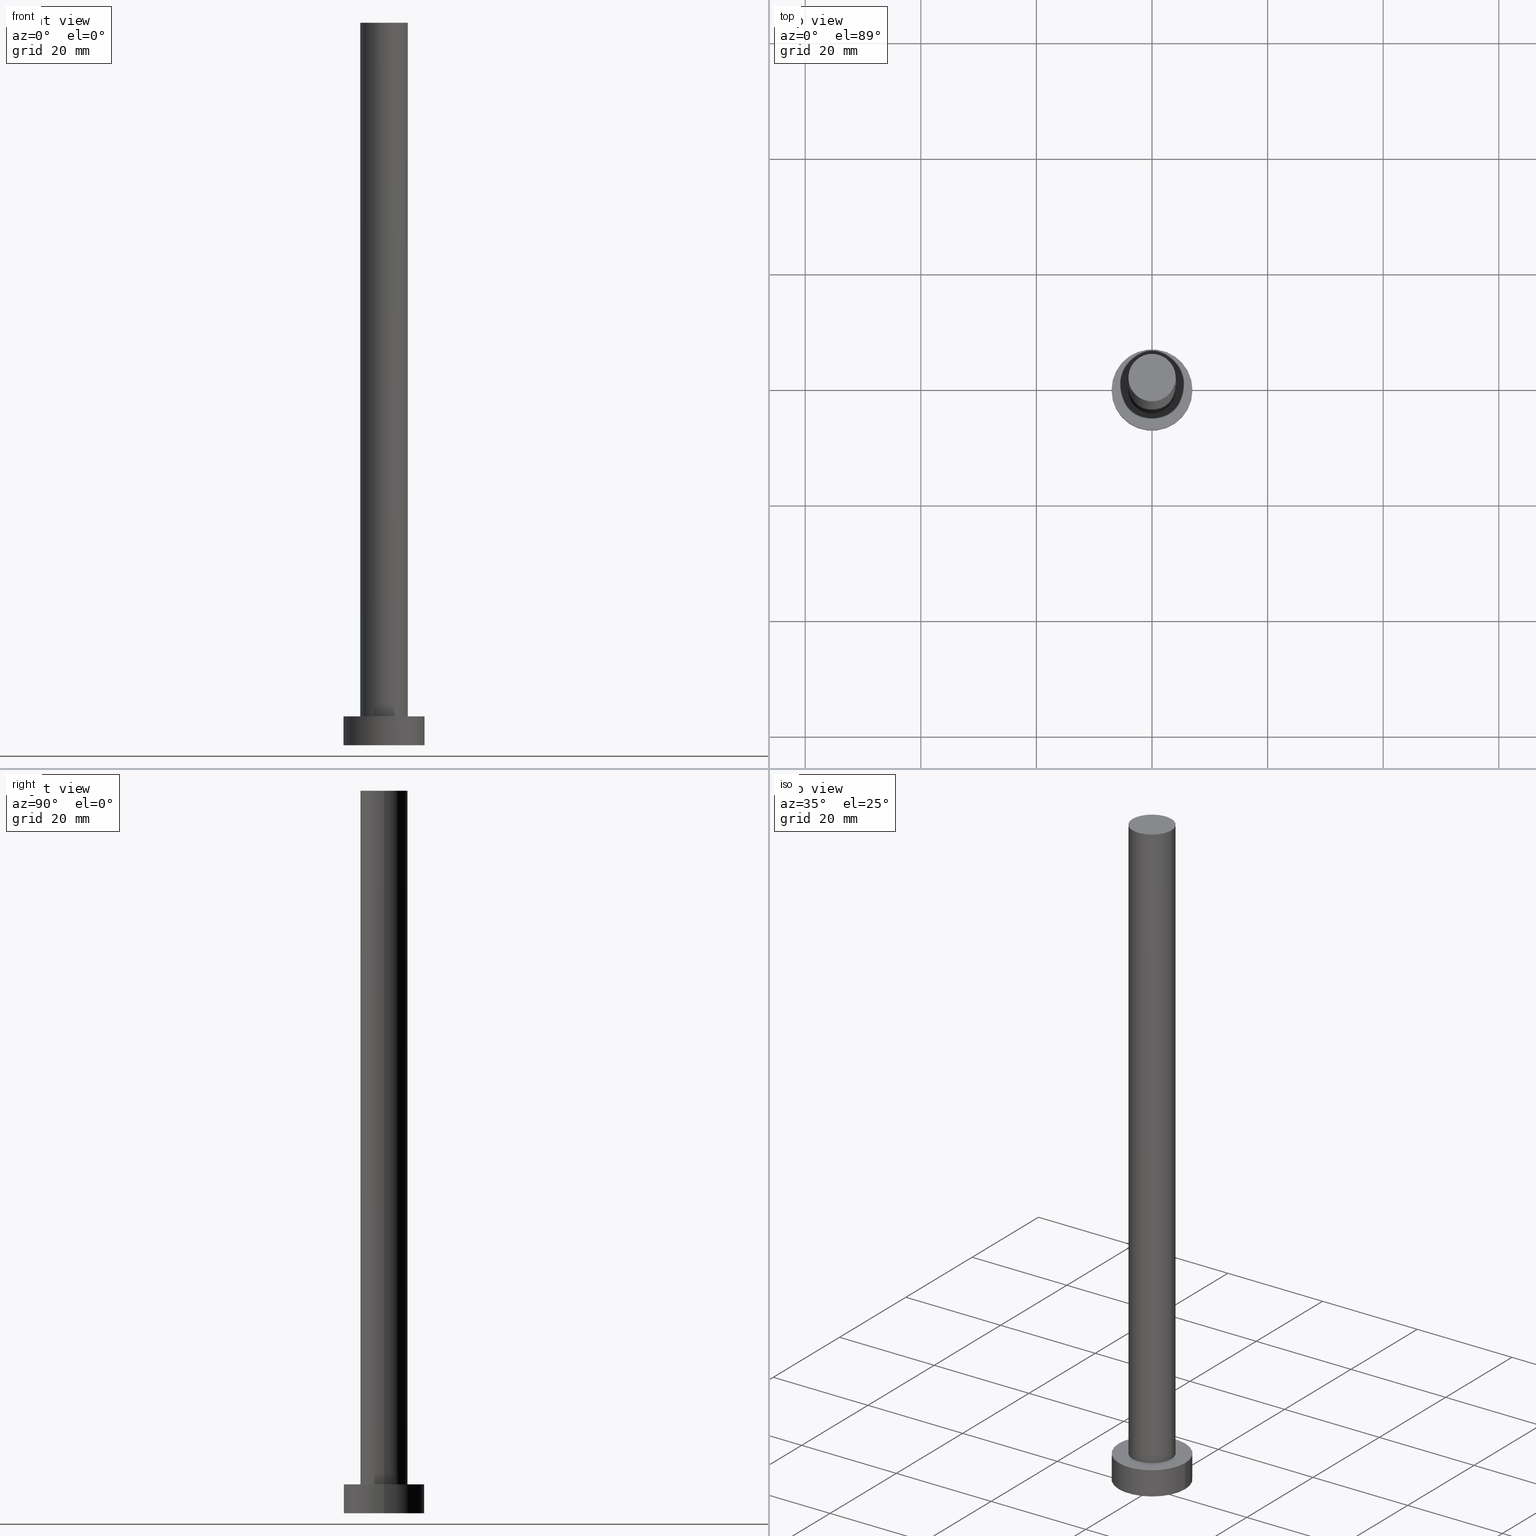
[diagram: canonical four-view strip — front | top / right | iso, engineering-drawing reading convention]
A machine part, canonical four-view strip (front | top / right | iso — engineering-drawing reading convention). The complete STEP part file that produces these views, byte-faithful:
ISO-10303-21;
HEADER;
FILE_DESCRIPTION (( 'STEP AP203' ),
    '1' );
FILE_NAME ('2de9.STEP',
    '2023-02-13T10:53:07',
    ( '' ),
    ( '' ),
    'SwSTEP 2.0',
    'SolidWorks 2019',
    '' );
FILE_SCHEMA (( 'CONFIG_CONTROL_DESIGN' ));
ENDSEC;

DATA;
#1 = PRODUCT ( '2de9', '2de9', '', ( #119 ) ) ;
#2 = CARTESIAN_POINT ( 'NONE',  ( 4.099999999999999645, 5.021051876504147385E-16, 125.0000000000000000 ) ) ;
#3 = CC_DESIGN_PERSON_AND_ORGANIZATION_ASSIGNMENT ( #31, #166, ( #184 ) ) ;
#4 = CARTESIAN_POINT ( 'NONE',  ( 0.000000000000000000, 0.000000000000000000, 125.0000000000000000 ) ) ;
#5 = PERSON_AND_ORGANIZATION ( #174, #231 ) ;
#6 = SHAPE_DEFINITION_REPRESENTATION ( #46, #116 ) ;
#7 = PRODUCT_RELATED_PRODUCT_CATEGORY ( 'detail', '', ( #1 ) ) ;
#8 = DIRECTION ( 'NONE',  ( 1.000000000000000000, 0.000000000000000000, 0.000000000000000000 ) ) ;
#9 = CYLINDRICAL_SURFACE ( 'NONE', #16, 7.000000000000000000 ) ;
#10 = PLANE ( 'NONE',  #102 ) ;
#11 = ORIENTED_EDGE ( 'NONE', *, *, #153, .T. ) ;
#12 = CARTESIAN_POINT ( 'NONE',  ( 4.099999999999999645, 5.021051876504147385E-16, 125.0000000000000000 ) ) ;
#13 = VECTOR ( 'NONE', #143, 1000.000000000000000 ) ;
#14 = CARTESIAN_POINT ( 'NONE',  ( 0.000000000000000000, 0.000000000000000000, 5.000000000000000000 ) ) ;
#15 = AXIS2_PLACEMENT_3D ( 'NONE', #4, #91, #161 ) ;
#16 = AXIS2_PLACEMENT_3D ( 'NONE', #76, #138, #37 ) ;
#17 = DIRECTION ( 'NONE',  ( 0.000000000000000000, 0.000000000000000000, 1.000000000000000000 ) ) ;
#19 = DIRECTION ( 'NONE',  ( 0.000000000000000000, 0.000000000000000000, 1.000000000000000000 ) ) ;
#18 = SECURITY_CLASSIFICATION_LEVEL ( 'unclassified' ) ;
#20 = VERTEX_POINT ( 'NONE', #170 ) ;
#21 = ORIENTED_EDGE ( 'NONE', *, *, #230, .T. ) ;
#22 = CC_DESIGN_SECURITY_CLASSIFICATION ( #184, ( #66 ) ) ;
#23 = LINE ( 'NONE', #12, #199 ) ;
#24 = CIRCLE ( 'NONE', #155, 4.099999999999999645 ) ;
#25 = CARTESIAN_POINT ( 'NONE',  ( 0.000000000000000000, 0.000000000000000000, 5.000000000000000000 ) ) ;
#26 = DIRECTION ( 'NONE',  ( 0.000000000000000000, 0.000000000000000000, 1.000000000000000000 ) ) ;
#27 = CARTESIAN_POINT ( 'NONE',  ( 0.000000000000000000, 0.000000000000000000, 0.000000000000000000 ) ) ;
#28 = LOCAL_TIME ( 11, 53, 7.000000000000000000, #90 ) ;
#29 = AXIS2_PLACEMENT_3D ( 'NONE', #27, #100, #8 ) ;
#30 = APPROVAL_ROLE ( '' ) ;
#31 = PERSON_AND_ORGANIZATION ( #174, #231 ) ;
#32 = ORIENTED_EDGE ( 'NONE', *, *, #200, .F. ) ;
#33 = APPLICATION_PROTOCOL_DEFINITION ( 'international standard', 'config_control_design', 1994, #244 ) ;
#34 = ORIENTED_EDGE ( 'NONE', *, *, #233, .F. ) ;
#35 = AXIS2_PLACEMENT_3D ( 'NONE', #106, #26, #84 ) ;
#36 = CC_DESIGN_PERSON_AND_ORGANIZATION_ASSIGNMENT ( #227, #213, ( #1 ) ) ;
#37 = DIRECTION ( 'NONE',  ( -1.000000000000000000, 0.000000000000000000, 0.000000000000000000 ) ) ;
#38 = DIRECTION ( 'NONE',  ( 0.000000000000000000, 0.000000000000000000, 1.000000000000000000 ) ) ;
#39 = DIRECTION ( 'NONE',  ( 1.000000000000000000, 0.000000000000000000, 0.000000000000000000 ) ) ;
#40 = PERSON_AND_ORGANIZATION ( #174, #231 ) ;
#41 = PERSON_AND_ORGANIZATION_ROLE ( 'creator' ) ;
#42 = AXIS2_PLACEMENT_3D ( 'NONE', #68, #17, #158 ) ;
#43 = DIRECTION ( 'NONE',  ( 1.000000000000000000, 0.000000000000000000, -0.000000000000000000 ) ) ;
#44 = ORIENTED_EDGE ( 'NONE', *, *, #52, .T. ) ;
#45 = DIRECTION ( 'NONE',  ( -1.000000000000000000, 0.000000000000000000, 0.000000000000000000 ) ) ;
#46 = PRODUCT_DEFINITION_SHAPE ( 'NONE', 'NONE',  #178 ) ;
#47 = EDGE_LOOP ( 'NONE', ( #241, #218, #137, #65 ) ) ;
#49 = CARTESIAN_POINT ( 'NONE',  ( 7.000000000000000000, 8.572527594031473190E-16, 0.000000000000000000 ) ) ;
#48 = CALENDAR_DATE ( 2023, 13, 2 ) ;
#50 = ORIENTED_EDGE ( 'NONE', *, *, #153, .F. ) ;
#51 = CARTESIAN_POINT ( 'NONE',  ( 0.000000000000000000, 0.000000000000000000, 125.0000000000000000 ) ) ;
#52 = EDGE_CURVE ( 'NONE', #254, #61, #120, .T. ) ;
#53 = PERSON_AND_ORGANIZATION_ROLE ( 'design_supplier' ) ;
#54 = ADVANCED_FACE ( 'NONE', ( #79 ), #180, .F. ) ;
#55 = ORIENTED_EDGE ( 'NONE', *, *, #186, .T. ) ;
#56 = DIRECTION ( 'NONE',  ( 0.000000000000000000, 0.000000000000000000, 1.000000000000000000 ) ) ;
#57 = DATE_AND_TIME ( #80, #108 ) ;
#58 = LOCAL_TIME ( 11, 53, 7.000000000000000000, #224 ) ;
#59 = DIRECTION ( 'NONE',  ( 1.000000000000000000, 0.000000000000000000, 0.000000000000000000 ) ) ;
#60 = APPROVAL_ROLE ( '' ) ;
#61 = VERTEX_POINT ( 'NONE', #160 ) ;
#62 = CC_DESIGN_DATE_AND_TIME_ASSIGNMENT ( #248, #93, ( #184 ) ) ;
#63 = CARTESIAN_POINT ( 'NONE',  ( 0.000000000000000000, 0.000000000000000000, 125.0000000000000000 ) ) ;
#64 = AXIS2_PLACEMENT_3D ( 'NONE', #171, #77, #118 ) ;
#65 = ORIENTED_EDGE ( 'NONE', *, *, #162, .F. ) ;
#66 = PRODUCT_DEFINITION_FORMATION_WITH_SPECIFIED_SOURCE ( 'LIBOVOLN�', '', #1, .NOT_KNOWN. ) ;
#67 = AXIS2_PLACEMENT_3D ( 'NONE', #239, #82, #43 ) ;
#68 = CARTESIAN_POINT ( 'NONE',  ( 0.000000000000000000, 0.000000000000000000, 0.000000000000000000 ) ) ;
#69 = CC_DESIGN_PERSON_AND_ORGANIZATION_ASSIGNMENT ( #40, #41, ( #178 ) ) ;
#70 = APPROVAL_DATE_TIME ( #159, #89 ) ;
#71 = APPROVAL_PERSON_ORGANIZATION ( #144, #99, #60 ) ;
#72 = PERSON_AND_ORGANIZATION_ROLE ( 'creator' ) ;
#73 = UNCERTAINTY_MEASURE_WITH_UNIT (LENGTH_MEASURE( 1.000000000000000082E-05 ), #255, 'distance_accuracy_value', 'NONE');
#74 = CIRCLE ( 'NONE', #35, 4.099999999999999645 ) ;
#75 = FACE_BOUND ( 'NONE', #247, .T. ) ;
#76 = CARTESIAN_POINT ( 'NONE',  ( 0.000000000000000000, 0.000000000000000000, 5.000000000000000000 ) ) ;
#77 = DIRECTION ( 'NONE',  ( 0.000000000000000000, 0.000000000000000000, 1.000000000000000000 ) ) ;
#78 = APPROVAL_DATE_TIME ( #81, #99 ) ;
#79 = FACE_OUTER_BOUND ( 'NONE', #185, .T. ) ;
#80 = CALENDAR_DATE ( 2023, 13, 2 ) ;
#81 = DATE_AND_TIME ( #126, #140 ) ;
#82 = DIRECTION ( 'NONE',  ( 0.000000000000000000, 0.000000000000000000, 1.000000000000000000 ) ) ;
#83 = LINE ( 'NONE', #253, #163 ) ;
#84 = DIRECTION ( 'NONE',  ( 1.000000000000000000, 0.000000000000000000, 0.000000000000000000 ) ) ;
#85 = ORIENTED_EDGE ( 'NONE', *, *, #105, .F. ) ;
#86 = MANIFOLD_SOLID_BREP ( 'P�idat vysunut�m3', #210 ) ;
#87 = PERSON_AND_ORGANIZATION ( #174, #231 ) ;
#88 = CYLINDRICAL_SURFACE ( 'NONE', #15, 4.099999999999999645 ) ;
#89 = APPROVAL ( #113, 'NEUR�EN�' ) ;
#90 = COORDINATED_UNIVERSAL_TIME_OFFSET ( 1, 0, .AHEAD. ) ;
#91 = DIRECTION ( 'NONE',  ( -0.000000000000000000, -0.000000000000000000, -1.000000000000000000 ) ) ;
#92 = VERTEX_POINT ( 'NONE', #2 ) ;
#94 = DIRECTION ( 'NONE',  ( 1.000000000000000000, 0.000000000000000000, -0.000000000000000000 ) ) ;
#93 = DATE_TIME_ROLE ( 'classification_date' ) ;
#95 = ORIENTED_EDGE ( 'NONE', *, *, #242, .F. ) ;
#96 = CIRCLE ( 'NONE', #251, 7.000000000000000000 ) ;
#97 = CARTESIAN_POINT ( 'NONE',  ( 0.000000000000000000, 0.000000000000000000, 5.000000000000000000 ) ) ;
#98 = EDGE_LOOP ( 'NONE', ( #131, #237, #173, #191 ) ) ;
#99 = APPROVAL ( #150, 'NEUR�EN�' ) ;
#100 = DIRECTION ( 'NONE',  ( 0.000000000000000000, 0.000000000000000000, 1.000000000000000000 ) ) ;
#101 = ADVANCED_FACE ( 'NONE', ( #243 ), #152, .T. ) ;
#102 = AXIS2_PLACEMENT_3D ( 'NONE', #169, #249, #94 ) ;
#103 = CYLINDRICAL_SURFACE ( 'NONE', #208, 7.000000000000000000 ) ;
#104 = VERTEX_POINT ( 'NONE', #204 ) ;
#105 = EDGE_CURVE ( 'NONE', #177, #92, #142, .T. ) ;
#106 = CARTESIAN_POINT ( 'NONE',  ( 0.000000000000000000, 0.000000000000000000, 5.000000000000000000 ) ) ;
#107 = ORIENTED_EDGE ( 'NONE', *, *, #136, .T. ) ;
#108 = LOCAL_TIME ( 11, 53, 7.000000000000000000, #147 ) ;
#109 = DIRECTION ( 'NONE',  ( 1.000000000000000000, 0.000000000000000000, 0.000000000000000000 ) ) ;
#110 = DIRECTION ( 'NONE',  ( -0.000000000000000000, -0.000000000000000000, -1.000000000000000000 ) ) ;
#111 = APPLICATION_CONTEXT ( 'configuration controlled 3d designs of mechanical parts and assemblies' ) ;
#112 = CC_DESIGN_PERSON_AND_ORGANIZATION_ASSIGNMENT ( #132, #72, ( #66 ) ) ;
#114 = DIRECTION ( 'NONE',  ( -0.000000000000000000, -0.000000000000000000, -1.000000000000000000 ) ) ;
#113 = APPROVAL_STATUS ( 'not_yet_approved' ) ;
#115 = DIRECTION ( 'NONE',  ( -0.000000000000000000, -0.000000000000000000, -1.000000000000000000 ) ) ;
#116 = ADVANCED_BREP_SHAPE_REPRESENTATION ( '2de9', ( #86, #64 ), #221 ) ;
#117 = APPROVAL_ROLE ( '' ) ;
#118 = DIRECTION ( 'NONE',  ( 1.000000000000000000, 0.000000000000000000, 0.000000000000000000 ) ) ;
#119 = MECHANICAL_CONTEXT ( 'NONE', #244, 'mechanical' ) ;
#120 = CIRCLE ( 'NONE', #168, 7.000000000000000000 ) ;
#121 = CC_DESIGN_APPROVAL ( #141, ( #66 ) ) ;
#122 = CC_DESIGN_PERSON_AND_ORGANIZATION_ASSIGNMENT ( #5, #53, ( #66 ) ) ;
#123 = DESIGN_CONTEXT ( 'detailed design', #111, 'design' ) ;
#124 = CARTESIAN_POINT ( 'NONE',  ( 0.000000000000000000, 0.000000000000000000, 0.000000000000000000 ) ) ;
#125 = ORIENTED_EDGE ( 'NONE', *, *, #197, .F. ) ;
#126 = CALENDAR_DATE ( 2023, 13, 2 ) ;
#127 = EDGE_LOOP ( 'NONE', ( #32, #85, #55, #107 ) ) ;
#128 = CC_DESIGN_APPROVAL ( #89, ( #184 ) ) ;
#129 = EDGE_CURVE ( 'NONE', #157, #104, #228, .T. ) ;
#130 =( NAMED_UNIT ( * ) PLANE_ANGLE_UNIT ( ) SI_UNIT ( $, .RADIAN. ) );
#131 = ORIENTED_EDGE ( 'NONE', *, *, #230, .F. ) ;
#133 = LINE ( 'NONE', #225, #215 ) ;
#132 = PERSON_AND_ORGANIZATION ( #174, #231 ) ;
#134 = APPROVAL_PERSON_ORGANIZATION ( #226, #141, #117 ) ;
#135 = CARTESIAN_POINT ( 'NONE',  ( 7.000000000000000000, 8.572527594031473190E-16, 5.000000000000000000 ) ) ;
#136 = EDGE_CURVE ( 'NONE', #229, #20, #198, .T. ) ;
#137 = ORIENTED_EDGE ( 'NONE', *, *, #129, .T. ) ;
#138 = DIRECTION ( 'NONE',  ( -0.000000000000000000, -0.000000000000000000, -1.000000000000000000 ) ) ;
#139 = DIRECTION ( 'NONE',  ( 1.000000000000000000, 0.000000000000000000, 0.000000000000000000 ) ) ;
#140 = LOCAL_TIME ( 11, 53, 7.000000000000000000, #202 ) ;
#141 = APPROVAL ( #211, 'NEUR�EN�' ) ;
#142 = CIRCLE ( 'NONE', #149, 4.099999999999999645 ) ;
#143 = DIRECTION ( 'NONE',  ( -0.000000000000000000, -0.000000000000000000, -1.000000000000000000 ) ) ;
#144 = PERSON_AND_ORGANIZATION ( #174, #231 ) ;
#145 = DIRECTION ( 'NONE',  ( 0.000000000000000000, 0.000000000000000000, 1.000000000000000000 ) ) ;
#146 = EDGE_LOOP ( 'NONE', ( #95, #50, #172, #165 ) ) ;
#147 = COORDINATED_UNIVERSAL_TIME_OFFSET ( 1, 0, .AHEAD. ) ;
#148 = ADVANCED_FACE ( 'NONE', ( #75, #195 ), #10, .T. ) ;
#149 = AXIS2_PLACEMENT_3D ( 'NONE', #238, #219, #109 ) ;
#150 = APPROVAL_STATUS ( 'not_yet_approved' ) ;
#151 = EDGE_LOOP ( 'NONE', ( #193, #21 ) ) ;
#152 = CYLINDRICAL_SURFACE ( 'NONE', #188, 4.099999999999999645 ) ;
#153 = EDGE_CURVE ( 'NONE', #61, #254, #194, .T. ) ;
#154 = DIRECTION ( 'NONE',  ( -0.000000000000000000, -0.000000000000000000, -1.000000000000000000 ) ) ;
#155 = AXIS2_PLACEMENT_3D ( 'NONE', #63, #145, #216 ) ;
#156 = APPROVAL_DATE_TIME ( #206, #141 ) ;
#157 = VERTEX_POINT ( 'NONE', #49 ) ;
#158 = DIRECTION ( 'NONE',  ( 1.000000000000000000, 0.000000000000000000, -0.000000000000000000 ) ) ;
#159 = DATE_AND_TIME ( #183, #58 ) ;
#160 = CARTESIAN_POINT ( 'NONE',  ( -7.000000000000000000, 0.000000000000000000, 5.000000000000000000 ) ) ;
#161 = DIRECTION ( 'NONE',  ( -1.000000000000000000, 0.000000000000000000, 0.000000000000000000 ) ) ;
#162 = EDGE_CURVE ( 'NONE', #61, #104, #133, .T. ) ;
#163 = VECTOR ( 'NONE', #115, 1000.000000000000000 ) ;
#164 =( NAMED_UNIT ( * ) SI_UNIT ( $, .STERADIAN. ) SOLID_ANGLE_UNIT ( ) );
#165 = ORIENTED_EDGE ( 'NONE', *, *, #197, .T. ) ;
#166 = PERSON_AND_ORGANIZATION_ROLE ( 'classification_officer' ) ;
#167 = ORIENTED_EDGE ( 'NONE', *, *, #136, .F. ) ;
#168 = AXIS2_PLACEMENT_3D ( 'NONE', #25, #217, #139 ) ;
#169 = CARTESIAN_POINT ( 'NONE',  ( 0.000000000000000000, 0.000000000000000000, 5.000000000000000000 ) ) ;
#170 = CARTESIAN_POINT ( 'NONE',  ( 4.099999999999999645, 5.021051876504147385E-16, 5.000000000000000000 ) ) ;
#171 = CARTESIAN_POINT ( 'NONE',  ( 0.000000000000000000, 0.000000000000000000, 0.000000000000000000 ) ) ;
#172 = ORIENTED_EDGE ( 'NONE', *, *, #162, .T. ) ;
#173 = ORIENTED_EDGE ( 'NONE', *, *, #233, .T. ) ;
#174 = PERSON ( 'NEUR�EN�', 'NEUR�EN�', 'NEUR�EN�', ('NEUR�EN�'), ('NEUR�EN�'), ('NEUR�EN�') ) ;
#175 = DIRECTION ( 'NONE',  ( -0.000000000000000000, -0.000000000000000000, -1.000000000000000000 ) ) ;
#176 = AXIS2_PLACEMENT_3D ( 'NONE', #207, #19, #181 ) ;
#177 = VERTEX_POINT ( 'NONE', #235 ) ;
#178 = PRODUCT_DEFINITION ( 'NEZN�M�', '', #66, #123 ) ;
#179 = LOCAL_TIME ( 11, 53, 7.000000000000000000, #212 ) ;
#180 = PLANE ( 'NONE',  #42 ) ;
#181 = DIRECTION ( 'NONE',  ( 1.000000000000000000, 0.000000000000000000, 0.000000000000000000 ) ) ;
#182 = EDGE_LOOP ( 'NONE', ( #11, #44 ) ) ;
#183 = CALENDAR_DATE ( 2023, 13, 2 ) ;
#184 = SECURITY_CLASSIFICATION ( '', '', #18 ) ;
#185 = EDGE_LOOP ( 'NONE', ( #125, #189 ) ) ;
#186 = EDGE_CURVE ( 'NONE', #177, #229, #196, .T. ) ;
#187 = APPLICATION_PROTOCOL_DEFINITION ( 'international standard', 'config_control_design', 1994, #111 ) ;
#188 = AXIS2_PLACEMENT_3D ( 'NONE', #51, #175, #45 ) ;
#189 = ORIENTED_EDGE ( 'NONE', *, *, #129, .F. ) ;
#190 = ADVANCED_FACE ( 'NONE', ( #234 ), #9, .T. ) ;
#191 = ORIENTED_EDGE ( 'NONE', *, *, #186, .F. ) ;
#192 = CARTESIAN_POINT ( 'NONE',  ( -4.099999999999999645, 0.000000000000000000, 125.0000000000000000 ) ) ;
#193 = ORIENTED_EDGE ( 'NONE', *, *, #105, .T. ) ;
#194 = CIRCLE ( 'NONE', #176, 7.000000000000000000 ) ;
#195 = FACE_OUTER_BOUND ( 'NONE', #182, .T. ) ;
#196 = LINE ( 'NONE', #192, #13 ) ;
#197 = EDGE_CURVE ( 'NONE', #104, #157, #96, .T. ) ;
#198 = CIRCLE ( 'NONE', #223, 4.099999999999999645 ) ;
#199 = VECTOR ( 'NONE', #154, 1000.000000000000000 ) ;
#200 = EDGE_CURVE ( 'NONE', #92, #20, #23, .T. ) ;
#201 = DIRECTION ( 'NONE',  ( -1.000000000000000000, 0.000000000000000000, 0.000000000000000000 ) ) ;
#202 = COORDINATED_UNIVERSAL_TIME_OFFSET ( 1, 0, .AHEAD. ) ;
#203 = CC_DESIGN_APPROVAL ( #99, ( #178 ) ) ;
#204 = CARTESIAN_POINT ( 'NONE',  ( -7.000000000000000000, 0.000000000000000000, 0.000000000000000000 ) ) ;
#205 = CC_DESIGN_DATE_AND_TIME_ASSIGNMENT ( #57, #232, ( #178 ) ) ;
#207 = CARTESIAN_POINT ( 'NONE',  ( 0.000000000000000000, 0.000000000000000000, 5.000000000000000000 ) ) ;
#206 = DATE_AND_TIME ( #48, #28 ) ;
#208 = AXIS2_PLACEMENT_3D ( 'NONE', #14, #110, #201 ) ;
#209 = FACE_OUTER_BOUND ( 'NONE', #127, .T. ) ;
#210 = CLOSED_SHELL ( 'NONE', ( #101, #236, #190, #148, #54, #245, #214 ) ) ;
#211 = APPROVAL_STATUS ( 'not_yet_approved' ) ;
#212 = COORDINATED_UNIVERSAL_TIME_OFFSET ( 1, 0, .AHEAD. ) ;
#213 = PERSON_AND_ORGANIZATION_ROLE ( 'design_owner' ) ;
#214 = ADVANCED_FACE ( 'NONE', ( #222 ), #240, .T. ) ;
#215 = VECTOR ( 'NONE', #114, 1000.000000000000000 ) ;
#216 = DIRECTION ( 'NONE',  ( 1.000000000000000000, 0.000000000000000000, 0.000000000000000000 ) ) ;
#217 = DIRECTION ( 'NONE',  ( 0.000000000000000000, 0.000000000000000000, 1.000000000000000000 ) ) ;
#218 = ORIENTED_EDGE ( 'NONE', *, *, #242, .T. ) ;
#219 = DIRECTION ( 'NONE',  ( 0.000000000000000000, 0.000000000000000000, 1.000000000000000000 ) ) ;
#220 = FACE_OUTER_BOUND ( 'NONE', #47, .T. ) ;
#221 =( GEOMETRIC_REPRESENTATION_CONTEXT ( 3 ) GLOBAL_UNCERTAINTY_ASSIGNED_CONTEXT ( ( #73 ) ) GLOBAL_UNIT_ASSIGNED_CONTEXT ( ( #255, #130, #164 ) ) REPRESENTATION_CONTEXT ( 'NONE', 'WORKASPACE' ) );
#222 = FACE_OUTER_BOUND ( 'NONE', #151, .T. ) ;
#223 = AXIS2_PLACEMENT_3D ( 'NONE', #97, #38, #59 ) ;
#224 = COORDINATED_UNIVERSAL_TIME_OFFSET ( 1, 0, .AHEAD. ) ;
#225 = CARTESIAN_POINT ( 'NONE',  ( -7.000000000000000000, 0.000000000000000000, 5.000000000000000000 ) ) ;
#226 = PERSON_AND_ORGANIZATION ( #174, #231 ) ;
#227 = PERSON_AND_ORGANIZATION ( #174, #231 ) ;
#228 = CIRCLE ( 'NONE', #29, 7.000000000000000000 ) ;
#229 = VERTEX_POINT ( 'NONE', #252 ) ;
#230 = EDGE_CURVE ( 'NONE', #92, #177, #24, .T. ) ;
#231 = ORGANIZATION ( 'NEUR�EN�', 'NEUR�EN�', '' ) ;
#232 = DATE_TIME_ROLE ( 'creation_date' ) ;
#233 = EDGE_CURVE ( 'NONE', #20, #229, #74, .T. ) ;
#234 = FACE_OUTER_BOUND ( 'NONE', #146, .T. ) ;
#235 = CARTESIAN_POINT ( 'NONE',  ( -4.099999999999999645, 0.000000000000000000, 125.0000000000000000 ) ) ;
#236 = ADVANCED_FACE ( 'NONE', ( #220 ), #103, .T. ) ;
#237 = ORIENTED_EDGE ( 'NONE', *, *, #200, .T. ) ;
#238 = CARTESIAN_POINT ( 'NONE',  ( 0.000000000000000000, 0.000000000000000000, 125.0000000000000000 ) ) ;
#239 = CARTESIAN_POINT ( 'NONE',  ( 0.000000000000000000, 0.000000000000000000, 125.0000000000000000 ) ) ;
#240 = PLANE ( 'NONE',  #67 ) ;
#241 = ORIENTED_EDGE ( 'NONE', *, *, #52, .F. ) ;
#242 = EDGE_CURVE ( 'NONE', #254, #157, #83, .T. ) ;
#243 = FACE_OUTER_BOUND ( 'NONE', #98, .T. ) ;
#244 = APPLICATION_CONTEXT ( 'configuration controlled 3d designs of mechanical parts and assemblies' ) ;
#245 = ADVANCED_FACE ( 'NONE', ( #209 ), #88, .T. ) ;
#246 = CALENDAR_DATE ( 2023, 13, 2 ) ;
#247 = EDGE_LOOP ( 'NONE', ( #167, #34 ) ) ;
#248 = DATE_AND_TIME ( #246, #179 ) ;
#249 = DIRECTION ( 'NONE',  ( 0.000000000000000000, 0.000000000000000000, 1.000000000000000000 ) ) ;
#250 = APPROVAL_PERSON_ORGANIZATION ( #87, #89, #30 ) ;
#251 = AXIS2_PLACEMENT_3D ( 'NONE', #124, #56, #39 ) ;
#252 = CARTESIAN_POINT ( 'NONE',  ( -4.099999999999999645, 0.000000000000000000, 5.000000000000000000 ) ) ;
#253 = CARTESIAN_POINT ( 'NONE',  ( 7.000000000000000000, 8.572527594031473190E-16, 5.000000000000000000 ) ) ;
#254 = VERTEX_POINT ( 'NONE', #135 ) ;
#255 =( LENGTH_UNIT ( ) NAMED_UNIT ( * ) SI_UNIT ( .MILLI., .METRE. ) );
ENDSEC;
END-ISO-10303-21;
